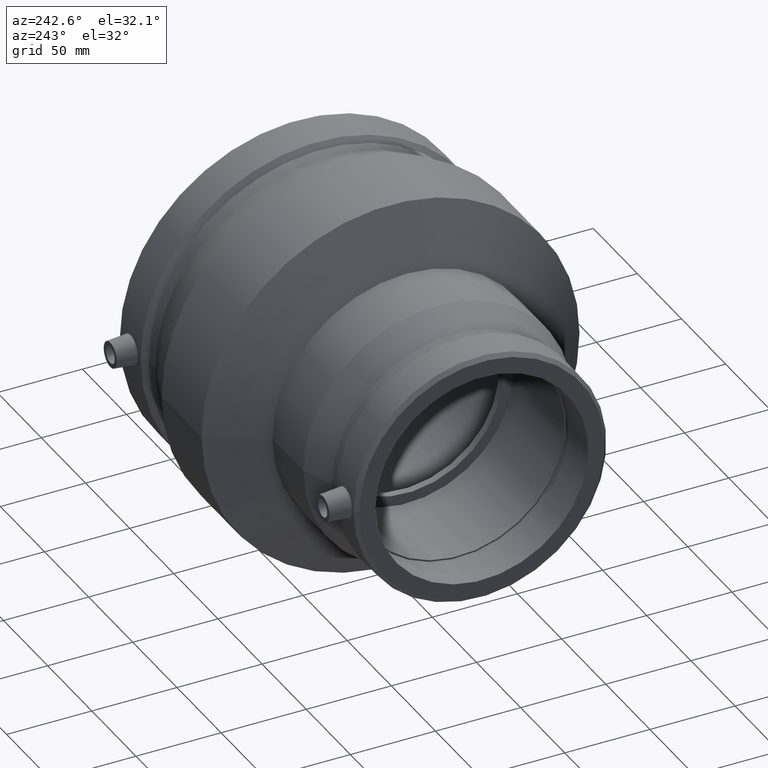
[diagram: clean part render]
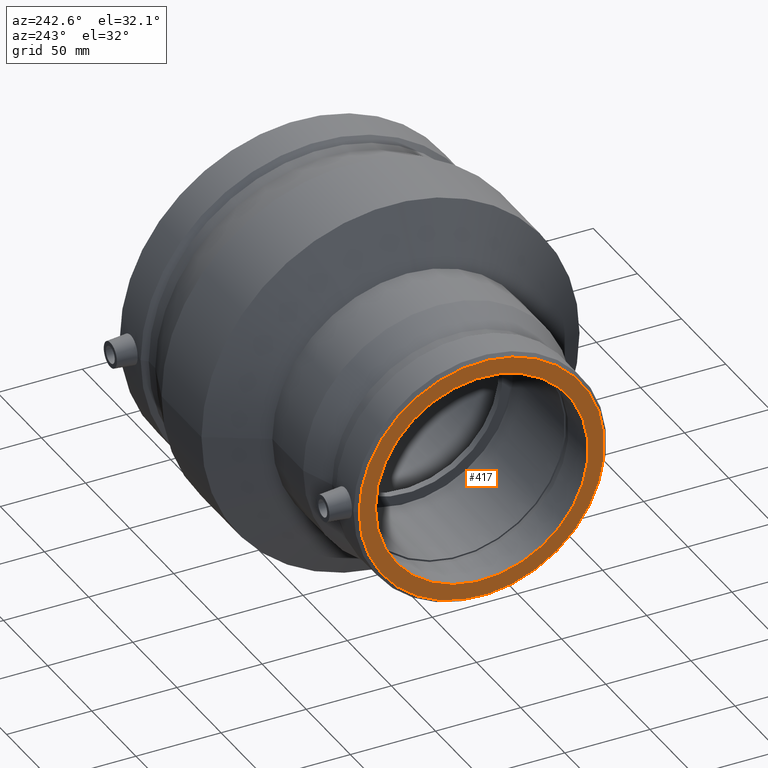
[diagram: same view with one face highlighted and labeled with its STEP entity id]
A machine part, auxiliary view. The second image highlights one B-rep face of the part: STEP entity #417.
In plain terms, the highlighted planar face has unit normal (-1, 0, 0).
Its self-contained STEP definition (entity closure, byte-faithful):
#39=FACE_BOUND('',#145,.T.);
#95=FACE_OUTER_BOUND('',#144,.T.);
#144=EDGE_LOOP('',(#337));
#145=EDGE_LOOP('',(#338));
#210=CIRCLE('',#469,72.0322);
#211=CIRCLE('',#470,62.5);
#249=VERTEX_POINT('',#780);
#250=VERTEX_POINT('',#782);
#288=EDGE_CURVE('',#249,#249,#210,.T.);
#289=EDGE_CURVE('',#250,#250,#211,.T.);
#337=ORIENTED_EDGE('',*,*,#288,.F.);
#338=ORIENTED_EDGE('',*,*,#289,.T.);
#399=PLANE('',#468);
#417=ADVANCED_FACE('',(#95,#39),#399,.T.);
#468=AXIS2_PLACEMENT_3D('',#779,#568,#569);
#469=AXIS2_PLACEMENT_3D('',#781,#570,#571);
#470=AXIS2_PLACEMENT_3D('',#783,#572,#573);
#568=DIRECTION('center_axis',(-1.,0.,0.));
#569=DIRECTION('ref_axis',(0.,0.,1.));
#570=DIRECTION('center_axis',(1.,0.,0.));
#571=DIRECTION('ref_axis',(0.,0.,-1.));
#572=DIRECTION('center_axis',(1.,0.,0.));
#573=DIRECTION('ref_axis',(0.,0.,-1.));
#779=CARTESIAN_POINT('Origin',(-106.,72.0322,0.));
#780=CARTESIAN_POINT('',(-106.,72.0322,0.));
#781=CARTESIAN_POINT('Origin',(-106.,0.,0.));
#782=CARTESIAN_POINT('',(-106.,62.5,0.));
#783=CARTESIAN_POINT('Origin',(-106.,0.,0.));